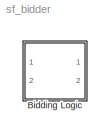
MODEL sf_bidder
KIND library
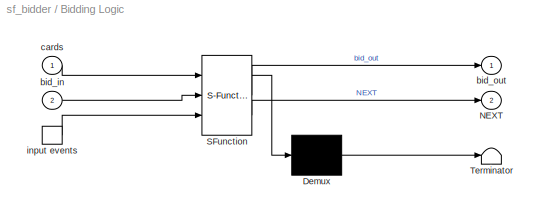
BLOCK [SubSystem] Bidding Logic
  MaskDescription = Stateflow diagram
  MaskDisplay = plot(sf('Private','sfblk','xIcon'),sf('Private','sfblk','yIcon'));text(0.5,0,sf('Private', 'sfblk', 'tIcon'),'HorizontalAl','Center','VerticalAl','Bottom');
  MaskIconFrame = off
  MaskIconOpaque = off
  MaskIconRotate = none
  MaskIconUnits = autoscale
  MaskSelfModifiable = on
  MaskType = Stateflow
  MinAlgLoopOccurrences = off
  Ports = [2, 2, 0, 1]
  PropExecContextAcrossSSBoundary = on
  RTWSystemCode = Auto
  TreatAsAtomicUnit = off
BLOCK [Demux] Bidding Logic/ Demux 
  Outputs = 1
  Ports = [1, 1]
BLOCK [S-Function] Bidding Logic/ SFunction 
  FunctionName = sf_sfun
  PortCounts = [3 3]
  Ports = [3, 3]
  Tag = Stateflow S-Function sf_bidder 1
BLOCK [Terminator] Bidding Logic/ Terminator 
BLOCK [TriggerPort] Bidding Logic/ input events 
  Ports = [0, 1]
  ShowOutputPort = on
  TriggerType = either
BLOCK [Outport] Bidding Logic/NEXT
  BusOutputAsStruct = off
  IconDisplay = Port number
  Port = 2
BLOCK [Inport] Bidding Logic/bid_in
  IconDisplay = Port number
  LatchInput = off
  Port = 2
BLOCK [Outport] Bidding Logic/bid_out
  BusOutputAsStruct = off
  IconDisplay = Port number
BLOCK [Inport] Bidding Logic/cards
  IconDisplay = Port number
  LatchInput = off
  Port = 1
LINE Bidding Logic/ Demux :1 -> Bidding Logic/ Terminator :1
LINE Bidding Logic/ SFunction :1 -> Bidding Logic/ Demux :1
LINE Bidding Logic/ SFunction :2 -> Bidding Logic/bid_out:1
LINE Bidding Logic/ SFunction :3 -> Bidding Logic/NEXT:1
LINE Bidding Logic/ input events :1 -> Bidding Logic/ SFunction :3
LINE Bidding Logic/bid_in:1 -> Bidding Logic/ SFunction :2
LINE Bidding Logic/cards:1 -> Bidding Logic/ SFunction :1
CHART Bidding Logic states=2 transitions=70
  STATE_LABEL 'bid()'
  STATE_LABEL 'points = count_distribution(suit_count)'
